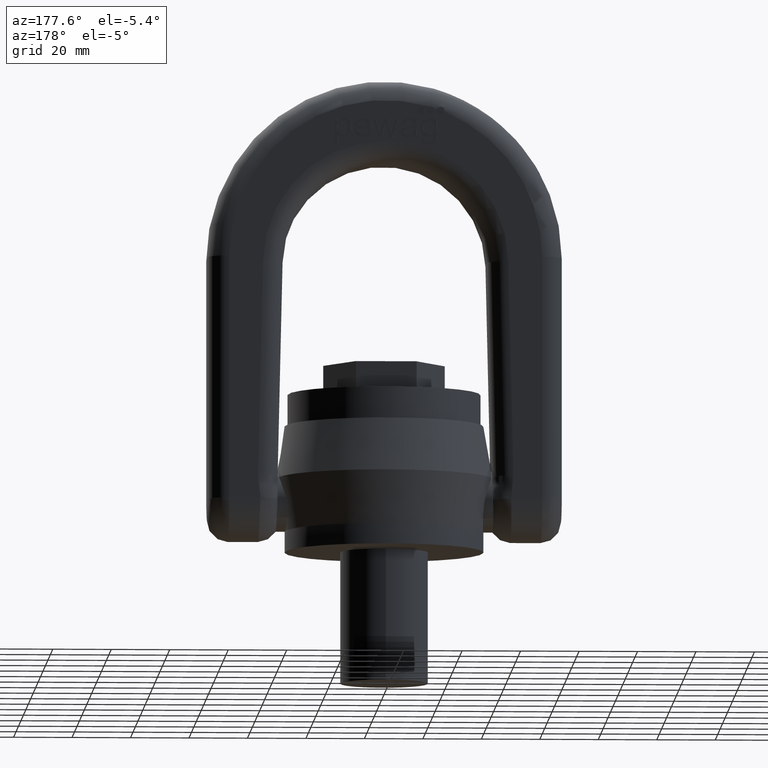
[diagram: clean part render]
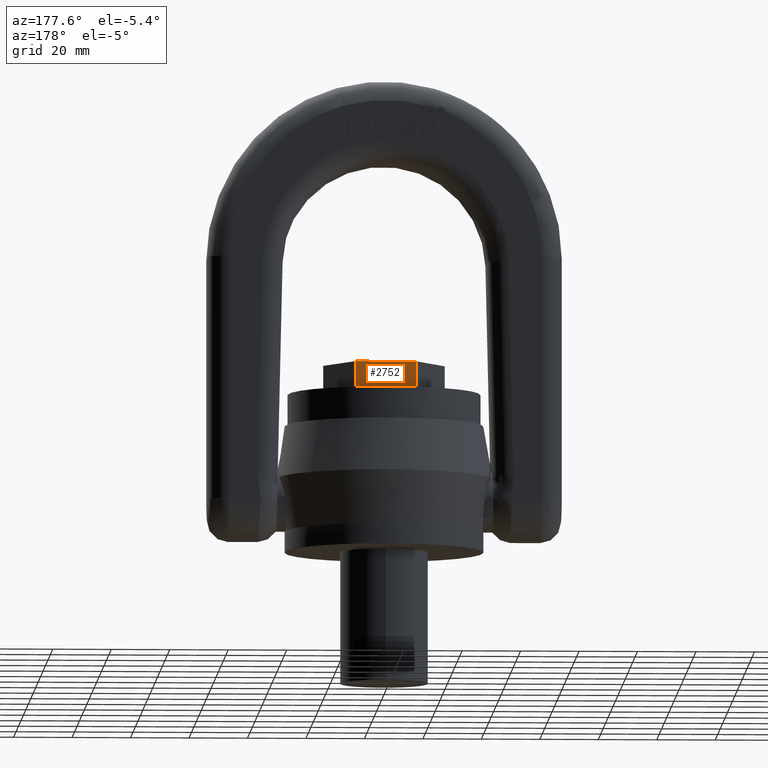
[diagram: same view with one face highlighted and labeled with its STEP entity id]
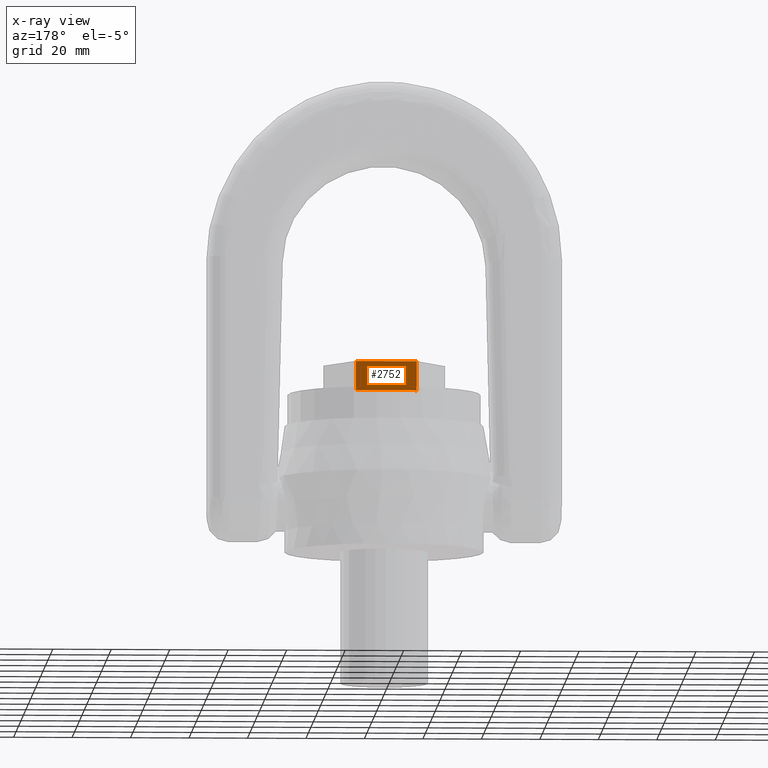
[diagram: x-ray of the same camera — body ghosted, the highlighted face saturated]
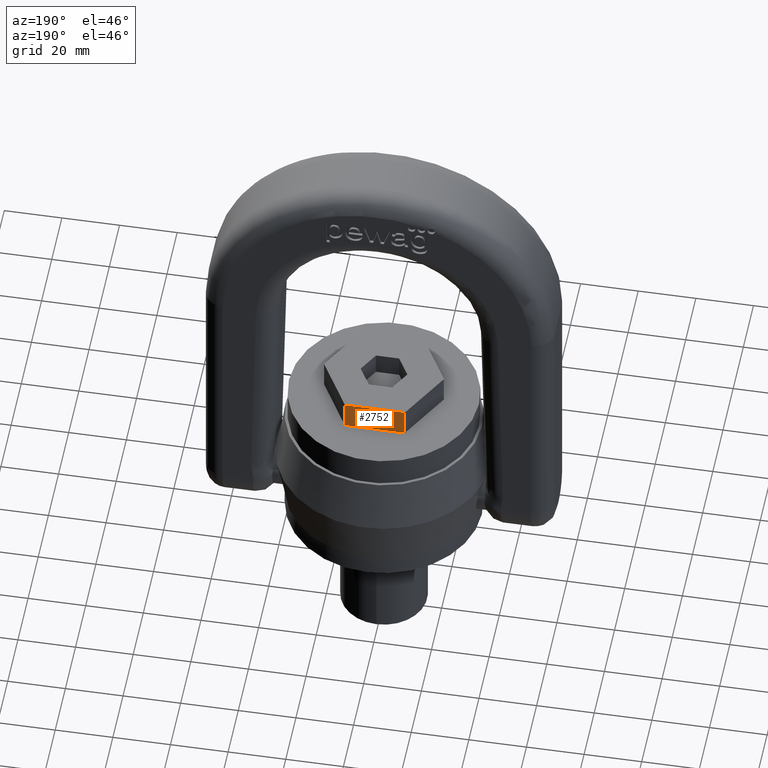
[diagram: same view with one face highlighted and labeled with its STEP entity id]
A machine part, auxiliary view. The second image highlights one B-rep face of the part: STEP entity #2752.
The next image is the same camera in x-ray: the body ghosted, the highlighted face saturated — about 0% of this face is hidden behind the body in this view.
A second angle (auxiliary view) of the same face is appended — the face is thin or edge-on in the first view.
In plain terms, the highlighted planar face has unit normal (0, -1, 0).
Its self-contained STEP definition (entity closure, byte-faithful):
#1757=LINE('',#6624,#2039);
#1768=LINE('',#6646,#2050);
#1770=LINE('',#6650,#2052);
#1771=LINE('',#6652,#2053);
#2039=VECTOR('',#5844,1.);
#2050=VECTOR('',#5863,1.);
#2052=VECTOR('',#5867,1.);
#2053=VECTOR('',#5868,1.);
#2416=FACE_OUTER_BOUND('',#3084,.T.);
#2633=PLANE('',#5623);
#2752=ADVANCED_FACE('',(#2416),#2633,.F.);
#3084=EDGE_LOOP('',(#3377,#3378,#3379,#3380));
#3377=ORIENTED_EDGE('',*,*,#4953,.T.);
#3378=ORIENTED_EDGE('',*,*,#4966,.F.);
#3379=ORIENTED_EDGE('',*,*,#4967,.F.);
#3380=ORIENTED_EDGE('',*,*,#4964,.T.);
#4553=VERTEX_POINT('',#6623);
#4554=VERTEX_POINT('',#6625);
#4561=VERTEX_POINT('',#6647);
#4562=VERTEX_POINT('',#6651);
#4953=EDGE_CURVE('',#4554,#4553,#1757,.T.);
#4964=EDGE_CURVE('',#4561,#4554,#1768,.T.);
#4966=EDGE_CURVE('',#4562,#4553,#1770,.T.);
#4967=EDGE_CURVE('',#4561,#4562,#1771,.T.);
#5623=AXIS2_PLACEMENT_3D('',#6653,#5869,#5870);
#5844=DIRECTION('',(-1.,0.,0.));
#5863=DIRECTION('',(0.,0.,-1.));
#5867=DIRECTION('',(0.,0.,-1.));
#5868=DIRECTION('',(-1.,0.,0.));
#5869=DIRECTION('',(0.,-1.,0.));
#5870=DIRECTION('',(0.,0.,-1.));
#6623=CARTESIAN_POINT('',(-10.3923048454133,18.,54.));
#6624=CARTESIAN_POINT('',(10.3923048454133,18.,54.));
#6625=CARTESIAN_POINT('',(10.3923048454133,18.,54.));
#6646=CARTESIAN_POINT('',(10.3923048454133,18.,64.));
#6647=CARTESIAN_POINT('',(10.3923048454133,18.,64.));
#6650=CARTESIAN_POINT('',(-10.3923048454133,18.,64.));
#6651=CARTESIAN_POINT('',(-10.3923048454133,18.,64.));
#6652=CARTESIAN_POINT('',(10.3923048454133,18.,64.));
#6653=CARTESIAN_POINT('',(10.3923048454133,18.,64.));